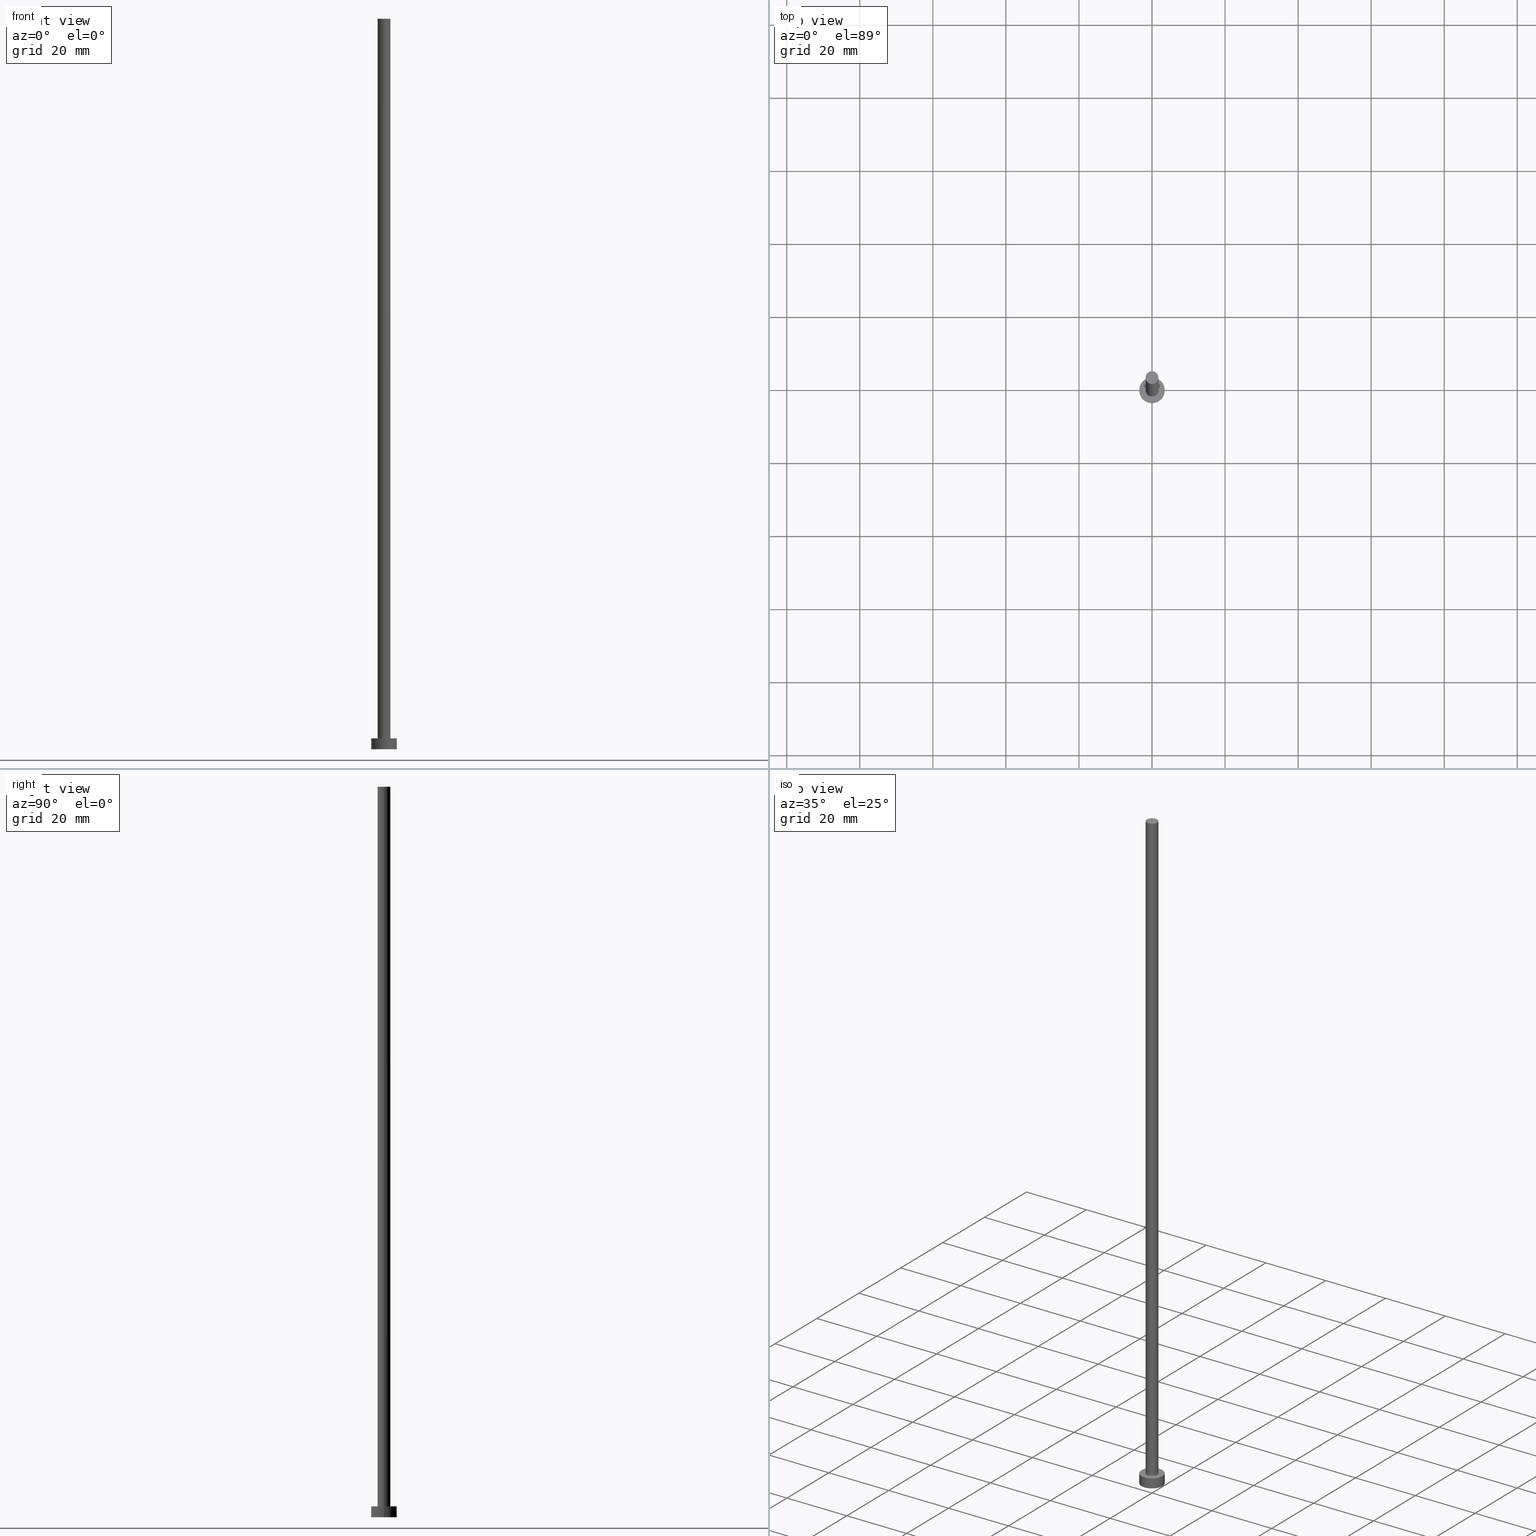
[diagram: canonical four-view strip — front | top / right | iso, engineering-drawing reading convention]
A machine part, canonical four-view strip (front | top / right | iso — engineering-drawing reading convention). The complete STEP part file that produces these views, byte-faithful:
ISO-10303-21;
HEADER;
FILE_DESCRIPTION (( 'STEP AP203' ),
    '1' );
FILE_NAME ('5a98.STEP',
    '2023-02-13T16:23:33',
    ( '' ),
    ( '' ),
    'SwSTEP 2.0',
    'SolidWorks 2019',
    '' );
FILE_SCHEMA (( 'CONFIG_CONTROL_DESIGN' ));
ENDSEC;

DATA;
#1 = COORDINATED_UNIVERSAL_TIME_OFFSET ( 1, 0, .AHEAD. ) ;
#2 = CIRCLE ( 'NONE', #93, 3.500000000000000000 ) ;
#3 = DATE_TIME_ROLE ( 'classification_date' ) ;
#4 = CIRCLE ( 'NONE', #217, 3.500000000000000000 ) ;
#5 = PERSON_AND_ORGANIZATION ( #246, #223 ) ;
#6 = CARTESIAN_POINT ( 'NONE',  ( 0.000000000000000000, 0.000000000000000000, 200.0000000000000000 ) ) ;
#7 = ORIENTED_EDGE ( 'NONE', *, *, #108, .T. ) ;
#8 = AXIS2_PLACEMENT_3D ( 'NONE', #254, #233, #59 ) ;
#9 = AXIS2_PLACEMENT_3D ( 'NONE', #178, #195, #61 ) ;
#10 = DIRECTION ( 'NONE',  ( 0.000000000000000000, 0.000000000000000000, 1.000000000000000000 ) ) ;
#11 = PRODUCT_DEFINITION ( 'NEZN�M�', '', #152, #23 ) ;
#12 = EDGE_LOOP ( 'NONE', ( #92, #112, #32, #95 ) ) ;
#13 = CARTESIAN_POINT ( 'NONE',  ( 1.750000000000000000, 2.143131898507868297E-16, 3.000000000000000000 ) ) ;
#14 = LOCAL_TIME ( 17, 23, 33.00000000000000000, #219 ) ;
#15 =( LENGTH_UNIT ( ) NAMED_UNIT ( * ) SI_UNIT ( .MILLI., .METRE. ) );
#16 = DIRECTION ( 'NONE',  ( 1.000000000000000000, 0.000000000000000000, 0.000000000000000000 ) ) ;
#17 = EDGE_CURVE ( 'NONE', #150, #72, #157, .T. ) ;
#18 = LINE ( 'NONE', #136, #250 ) ;
#19 = CC_DESIGN_PERSON_AND_ORGANIZATION_ASSIGNMENT ( #25, #142, ( #26 ) ) ;
#20 = DATE_TIME_ROLE ( 'creation_date' ) ;
#21 = APPROVAL_STATUS ( 'not_yet_approved' ) ;
#22 = CALENDAR_DATE ( 2023, 13, 2 ) ;
#23 = DESIGN_CONTEXT ( 'detailed design', #154, 'design' ) ;
#24 = DATE_AND_TIME ( #43, #14 ) ;
#25 = PERSON_AND_ORGANIZATION ( #246, #223 ) ;
#26 = PRODUCT ( '5a98', '5a98', '', ( #123 ) ) ;
#27 = ADVANCED_FACE ( 'NONE', ( #226 ), #55, .T. ) ;
#28 = ADVANCED_FACE ( 'NONE', ( #225 ), #186, .T. ) ;
#29 = ORIENTED_EDGE ( 'NONE', *, *, #38, .T. ) ;
#30 = AXIS2_PLACEMENT_3D ( 'NONE', #117, #80, #118 ) ;
#31 = EDGE_LOOP ( 'NONE', ( #228, #7, #76, #244 ) ) ;
#32 = ORIENTED_EDGE ( 'NONE', *, *, #78, .T. ) ;
#33 = DIRECTION ( 'NONE',  ( -0.000000000000000000, -0.000000000000000000, -1.000000000000000000 ) ) ;
#34 = APPROVAL_PERSON_ORGANIZATION ( #199, #168, #183 ) ;
#35 = AXIS2_PLACEMENT_3D ( 'NONE', #132, #10, #130 ) ;
#36 = CARTESIAN_POINT ( 'NONE',  ( 0.000000000000000000, 0.000000000000000000, 0.000000000000000000 ) ) ;
#37 = FACE_OUTER_BOUND ( 'NONE', #167, .T. ) ;
#38 = EDGE_CURVE ( 'NONE', #134, #207, #89, .T. ) ;
#39 = DIRECTION ( 'NONE',  ( -0.000000000000000000, -0.000000000000000000, -1.000000000000000000 ) ) ;
#40 = DIRECTION ( 'NONE',  ( -0.000000000000000000, -0.000000000000000000, -1.000000000000000000 ) ) ;
#41 = CARTESIAN_POINT ( 'NONE',  ( -3.500000000000000000, 0.000000000000000000, 3.000000000000000000 ) ) ;
#42 = CARTESIAN_POINT ( 'NONE',  ( 1.750000000000000000, 2.143131898507868297E-16, 200.0000000000000000 ) ) ;
#43 = CALENDAR_DATE ( 2023, 13, 2 ) ;
#44 = ADVANCED_FACE ( 'NONE', ( #155 ), #230, .F. ) ;
#45 = DATE_AND_TIME ( #220, #174 ) ;
#46 = PERSON_AND_ORGANIZATION_ROLE ( 'classification_officer' ) ;
#47 = LOCAL_TIME ( 17, 23, 33.00000000000000000, #1 ) ;
#48 = PERSON_AND_ORGANIZATION ( #246, #223 ) ;
#49 = PRODUCT_DEFINITION_SHAPE ( 'NONE', 'NONE',  #11 ) ;
#50 = EDGE_LOOP ( 'NONE', ( #73, #91 ) ) ;
#51 = APPROVAL ( #166, 'NEUR�EN�' ) ;
#52 = VERTEX_POINT ( 'NONE', #81 ) ;
#53 = ORIENTED_EDGE ( 'NONE', *, *, #182, .F. ) ;
#54 = EDGE_CURVE ( 'NONE', #52, #190, #175, .T. ) ;
#55 = PLANE ( 'NONE',  #35 ) ;
#56 = VERTEX_POINT ( 'NONE', #193 ) ;
#57 = AXIS2_PLACEMENT_3D ( 'NONE', #6, #33, #94 ) ;
#58 = FACE_OUTER_BOUND ( 'NONE', #12, .T. ) ;
#59 = DIRECTION ( 'NONE',  ( -1.000000000000000000, 0.000000000000000000, 0.000000000000000000 ) ) ;
#60 = APPROVAL_PERSON_ORGANIZATION ( #48, #133, #84 ) ;
#61 = DIRECTION ( 'NONE',  ( -1.000000000000000000, 0.000000000000000000, 0.000000000000000000 ) ) ;
#62 = DIRECTION ( 'NONE',  ( 0.000000000000000000, 0.000000000000000000, 1.000000000000000000 ) ) ;
#63 = ADVANCED_FACE ( 'NONE', ( #58 ), #194, .T. ) ;
#64 = DATE_AND_TIME ( #104, #141 ) ;
#65 = APPLICATION_PROTOCOL_DEFINITION ( 'international standard', 'config_control_design', 1994, #176 ) ;
#66 = CC_DESIGN_APPROVAL ( #133, ( #11 ) ) ;
#67 = CIRCLE ( 'NONE', #161, 1.750000000000000000 ) ;
#68 = COORDINATED_UNIVERSAL_TIME_OFFSET ( 1, 0, .AHEAD. ) ;
#69 = COORDINATED_UNIVERSAL_TIME_OFFSET ( 1, 0, .AHEAD. ) ;
#70 = DIRECTION ( 'NONE',  ( 0.000000000000000000, 0.000000000000000000, 1.000000000000000000 ) ) ;
#71 = CC_DESIGN_SECURITY_CLASSIFICATION ( #147, ( #152 ) ) ;
#72 = VERTEX_POINT ( 'NONE', #42 ) ;
#73 = ORIENTED_EDGE ( 'NONE', *, *, #181, .T. ) ;
#74 = CARTESIAN_POINT ( 'NONE',  ( 0.000000000000000000, 0.000000000000000000, 200.0000000000000000 ) ) ;
#75 = PRODUCT_RELATED_PRODUCT_CATEGORY ( 'detail', '', ( #26 ) ) ;
#76 = ORIENTED_EDGE ( 'NONE', *, *, #196, .T. ) ;
#77 = DIRECTION ( 'NONE',  ( 1.000000000000000000, 0.000000000000000000, 0.000000000000000000 ) ) ;
#78 = EDGE_CURVE ( 'NONE', #150, #52, #18, .T. ) ;
#79 = DIRECTION ( 'NONE',  ( 0.000000000000000000, 0.000000000000000000, 1.000000000000000000 ) ) ;
#80 = DIRECTION ( 'NONE',  ( 0.000000000000000000, 0.000000000000000000, 1.000000000000000000 ) ) ;
#81 = CARTESIAN_POINT ( 'NONE',  ( -1.750000000000000000, 0.000000000000000000, 3.000000000000000000 ) ) ;
#82 = CARTESIAN_POINT ( 'NONE',  ( 0.000000000000000000, 0.000000000000000000, 3.000000000000000000 ) ) ;
#83 = DIRECTION ( 'NONE',  ( 1.000000000000000000, 0.000000000000000000, 0.000000000000000000 ) ) ;
#84 = APPROVAL_ROLE ( '' ) ;
#85 = CALENDAR_DATE ( 2023, 13, 2 ) ;
#86 = AXIS2_PLACEMENT_3D ( 'NONE', #74, #153, #229 ) ;
#87 = SHAPE_DEFINITION_REPRESENTATION ( #49, #251 ) ;
#88 = CC_DESIGN_APPROVAL ( #51, ( #152 ) ) ;
#89 = CIRCLE ( 'NONE', #218, 3.500000000000000000 ) ;
#90 = CC_DESIGN_DATE_AND_TIME_ASSIGNMENT ( #125, #20, ( #11 ) ) ;
#91 = ORIENTED_EDGE ( 'NONE', *, *, #148, .T. ) ;
#92 = ORIENTED_EDGE ( 'NONE', *, *, #108, .F. ) ;
#93 = AXIS2_PLACEMENT_3D ( 'NONE', #211, #162, #215 ) ;
#94 = DIRECTION ( 'NONE',  ( -1.000000000000000000, 0.000000000000000000, 0.000000000000000000 ) ) ;
#95 = ORIENTED_EDGE ( 'NONE', *, *, #54, .T. ) ;
#96 = CARTESIAN_POINT ( 'NONE',  ( 3.500000000000000000, 4.286263797015736595E-16, 3.000000000000000000 ) ) ;
#97 = AXIS2_PLACEMENT_3D ( 'NONE', #36, #116, #191 ) ;
#98 = LINE ( 'NONE', #213, #127 ) ;
#99 = FACE_OUTER_BOUND ( 'NONE', #169, .T. ) ;
#100 = DIRECTION ( 'NONE',  ( 1.000000000000000000, 0.000000000000000000, 0.000000000000000000 ) ) ;
#101 = CARTESIAN_POINT ( 'NONE',  ( -1.750000000000000000, 0.000000000000000000, 200.0000000000000000 ) ) ;
#102 = EDGE_CURVE ( 'NONE', #172, #134, #98, .T. ) ;
#103 = CC_DESIGN_PERSON_AND_ORGANIZATION_ASSIGNMENT ( #5, #46, ( #147 ) ) ;
#104 = CALENDAR_DATE ( 2023, 13, 2 ) ;
#105 = PERSON_AND_ORGANIZATION ( #246, #223 ) ;
#106 = EDGE_CURVE ( 'NONE', #72, #150, #67, .T. ) ;
#107 = APPROVAL_ROLE ( '' ) ;
#108 = EDGE_CURVE ( 'NONE', #72, #190, #249, .T. ) ;
#109 = CC_DESIGN_PERSON_AND_ORGANIZATION_ASSIGNMENT ( #242, #128, ( #152 ) ) ;
#110 = ORIENTED_EDGE ( 'NONE', *, *, #148, .F. ) ;
#111 = AXIS2_PLACEMENT_3D ( 'NONE', #235, #62, #83 ) ;
#112 = ORIENTED_EDGE ( 'NONE', *, *, #17, .F. ) ;
#113 = EDGE_LOOP ( 'NONE', ( #203, #243 ) ) ;
#114 = ORIENTED_EDGE ( 'NONE', *, *, #102, .F. ) ;
#115 = LOCAL_TIME ( 17, 23, 33.00000000000000000, #69 ) ;
#116 = DIRECTION ( 'NONE',  ( 0.000000000000000000, 0.000000000000000000, 1.000000000000000000 ) ) ;
#117 = CARTESIAN_POINT ( 'NONE',  ( 0.000000000000000000, 0.000000000000000000, 3.000000000000000000 ) ) ;
#118 = DIRECTION ( 'NONE',  ( 1.000000000000000000, 0.000000000000000000, 0.000000000000000000 ) ) ;
#119 =( GEOMETRIC_REPRESENTATION_CONTEXT ( 3 ) GLOBAL_UNCERTAINTY_ASSIGNED_CONTEXT ( ( #124 ) ) GLOBAL_UNIT_ASSIGNED_CONTEXT ( ( #15, #200, #198 ) ) REPRESENTATION_CONTEXT ( 'NONE', 'WORKASPACE' ) );
#120 = CYLINDRICAL_SURFACE ( 'NONE', #137, 3.500000000000000000 ) ;
#121 = FACE_OUTER_BOUND ( 'NONE', #50, .T. ) ;
#122 = DIRECTION ( 'NONE',  ( 1.000000000000000000, 0.000000000000000000, -0.000000000000000000 ) ) ;
#123 = MECHANICAL_CONTEXT ( 'NONE', #176, 'mechanical' ) ;
#124 = UNCERTAINTY_MEASURE_WITH_UNIT (LENGTH_MEASURE( 1.000000000000000082E-05 ), #15, 'distance_accuracy_value', 'NONE');
#125 = DATE_AND_TIME ( #22, #47 ) ;
#126 = APPROVAL_DATE_TIME ( #45, #168 ) ;
#127 = VECTOR ( 'NONE', #158, 1000.000000000000000 ) ;
#128 = PERSON_AND_ORGANIZATION_ROLE ( 'creator' ) ;
#129 = ORIENTED_EDGE ( 'NONE', *, *, #17, .T. ) ;
#130 = DIRECTION ( 'NONE',  ( 1.000000000000000000, 0.000000000000000000, -0.000000000000000000 ) ) ;
#131 = ORIENTED_EDGE ( 'NONE', *, *, #106, .T. ) ;
#132 = CARTESIAN_POINT ( 'NONE',  ( 0.000000000000000000, 0.000000000000000000, 200.0000000000000000 ) ) ;
#133 = APPROVAL ( #255, 'NEUR�EN�' ) ;
#134 = VERTEX_POINT ( 'NONE', #238 ) ;
#135 = CIRCLE ( 'NONE', #30, 1.750000000000000000 ) ;
#136 = CARTESIAN_POINT ( 'NONE',  ( -1.750000000000000000, 0.000000000000000000, 200.0000000000000000 ) ) ;
#137 = AXIS2_PLACEMENT_3D ( 'NONE', #177, #140, #138 ) ;
#138 = DIRECTION ( 'NONE',  ( -1.000000000000000000, 0.000000000000000000, 0.000000000000000000 ) ) ;
#139 = MANIFOLD_SOLID_BREP ( 'P�idat vysunut�m3', #237 ) ;
#140 = DIRECTION ( 'NONE',  ( -0.000000000000000000, -0.000000000000000000, -1.000000000000000000 ) ) ;
#141 = LOCAL_TIME ( 17, 23, 33.00000000000000000, #165 ) ;
#142 = PERSON_AND_ORGANIZATION_ROLE ( 'design_owner' ) ;
#143 = VECTOR ( 'NONE', #159, 1000.000000000000000 ) ;
#144 = PERSON_AND_ORGANIZATION_ROLE ( 'creator' ) ;
#145 = ADVANCED_FACE ( 'NONE', ( #37 ), #120, .T. ) ;
#146 = APPROVAL_DATE_TIME ( #222, #51 ) ;
#147 = SECURITY_CLASSIFICATION ( '', '', #239 ) ;
#148 = EDGE_CURVE ( 'NONE', #172, #56, #2, .T. ) ;
#149 = CC_DESIGN_PERSON_AND_ORGANIZATION_ASSIGNMENT ( #202, #184, ( #152 ) ) ;
#150 = VERTEX_POINT ( 'NONE', #101 ) ;
#151 = ORIENTED_EDGE ( 'NONE', *, *, #181, .F. ) ;
#152 = PRODUCT_DEFINITION_FORMATION_WITH_SPECIFIED_SOURCE ( 'LIBOVOLN�', '', #26, .NOT_KNOWN. ) ;
#153 = DIRECTION ( 'NONE',  ( 0.000000000000000000, 0.000000000000000000, 1.000000000000000000 ) ) ;
#154 = APPLICATION_CONTEXT ( 'configuration controlled 3d designs of mechanical parts and assemblies' ) ;
#155 = FACE_OUTER_BOUND ( 'NONE', #206, .T. ) ;
#156 = CARTESIAN_POINT ( 'NONE',  ( 0.000000000000000000, 0.000000000000000000, 0.000000000000000000 ) ) ;
#157 = CIRCLE ( 'NONE', #86, 1.750000000000000000 ) ;
#158 = DIRECTION ( 'NONE',  ( -0.000000000000000000, -0.000000000000000000, -1.000000000000000000 ) ) ;
#159 = DIRECTION ( 'NONE',  ( -0.000000000000000000, -0.000000000000000000, -1.000000000000000000 ) ) ;
#160 = CARTESIAN_POINT ( 'NONE',  ( 0.000000000000000000, 0.000000000000000000, 3.000000000000000000 ) ) ;
#161 = AXIS2_PLACEMENT_3D ( 'NONE', #197, #253, #210 ) ;
#162 = DIRECTION ( 'NONE',  ( 0.000000000000000000, 0.000000000000000000, 1.000000000000000000 ) ) ;
#163 = CARTESIAN_POINT ( 'NONE',  ( 0.000000000000000000, 0.000000000000000000, 0.000000000000000000 ) ) ;
#164 = APPROVAL_DATE_TIME ( #64, #133 ) ;
#165 = COORDINATED_UNIVERSAL_TIME_OFFSET ( 1, 0, .AHEAD. ) ;
#166 = APPROVAL_STATUS ( 'not_yet_approved' ) ;
#167 = EDGE_LOOP ( 'NONE', ( #110, #170, #29, #53 ) ) ;
#168 = APPROVAL ( #21, 'NEUR�EN�' ) ;
#169 = EDGE_LOOP ( 'NONE', ( #114, #151, #209, #188 ) ) ;
#170 = ORIENTED_EDGE ( 'NONE', *, *, #102, .T. ) ;
#171 = CARTESIAN_POINT ( 'NONE',  ( 0.000000000000000000, 0.000000000000000000, 0.000000000000000000 ) ) ;
#172 = VERTEX_POINT ( 'NONE', #96 ) ;
#173 = FACE_BOUND ( 'NONE', #113, .T. ) ;
#174 = LOCAL_TIME ( 17, 23, 33.00000000000000000, #68 ) ;
#175 = CIRCLE ( 'NONE', #111, 1.750000000000000000 ) ;
#176 = APPLICATION_CONTEXT ( 'configuration controlled 3d designs of mechanical parts and assemblies' ) ;
#177 = CARTESIAN_POINT ( 'NONE',  ( 0.000000000000000000, 0.000000000000000000, 3.000000000000000000 ) ) ;
#178 = CARTESIAN_POINT ( 'NONE',  ( 0.000000000000000000, 0.000000000000000000, 200.0000000000000000 ) ) ;
#179 = DIRECTION ( 'NONE',  ( 0.000000000000000000, 0.000000000000000000, 1.000000000000000000 ) ) ;
#180 = CC_DESIGN_APPROVAL ( #168, ( #147 ) ) ;
#181 = EDGE_CURVE ( 'NONE', #56, #172, #208, .T. ) ;
#182 = EDGE_CURVE ( 'NONE', #56, #207, #252, .T. ) ;
#183 = APPROVAL_ROLE ( '' ) ;
#184 = PERSON_AND_ORGANIZATION_ROLE ( 'design_supplier' ) ;
#185 = ADVANCED_FACE ( 'NONE', ( #173, #121 ), #232, .T. ) ;
#186 = CYLINDRICAL_SURFACE ( 'NONE', #57, 1.750000000000000000 ) ;
#187 = ORIENTED_EDGE ( 'NONE', *, *, #221, .F. ) ;
#188 = ORIENTED_EDGE ( 'NONE', *, *, #221, .T. ) ;
#189 = APPROVAL_PERSON_ORGANIZATION ( #105, #51, #107 ) ;
#190 = VERTEX_POINT ( 'NONE', #13 ) ;
#191 = DIRECTION ( 'NONE',  ( 1.000000000000000000, 0.000000000000000000, -0.000000000000000000 ) ) ;
#192 = CARTESIAN_POINT ( 'NONE',  ( 1.750000000000000000, 2.143131898507868297E-16, 200.0000000000000000 ) ) ;
#193 = CARTESIAN_POINT ( 'NONE',  ( -3.500000000000000000, 0.000000000000000000, 3.000000000000000000 ) ) ;
#194 = CYLINDRICAL_SURFACE ( 'NONE', #9, 1.750000000000000000 ) ;
#195 = DIRECTION ( 'NONE',  ( -0.000000000000000000, -0.000000000000000000, -1.000000000000000000 ) ) ;
#196 = EDGE_CURVE ( 'NONE', #190, #52, #135, .T. ) ;
#197 = CARTESIAN_POINT ( 'NONE',  ( 0.000000000000000000, 0.000000000000000000, 200.0000000000000000 ) ) ;
#198 =( NAMED_UNIT ( * ) SI_UNIT ( $, .STERADIAN. ) SOLID_ANGLE_UNIT ( ) );
#199 = PERSON_AND_ORGANIZATION ( #246, #223 ) ;
#200 =( NAMED_UNIT ( * ) PLANE_ANGLE_UNIT ( ) SI_UNIT ( $, .RADIAN. ) );
#201 = AXIS2_PLACEMENT_3D ( 'NONE', #163, #70, #224 ) ;
#202 = PERSON_AND_ORGANIZATION ( #246, #223 ) ;
#203 = ORIENTED_EDGE ( 'NONE', *, *, #54, .F. ) ;
#204 = AXIS2_PLACEMENT_3D ( 'NONE', #82, #248, #16 ) ;
#205 = ORIENTED_EDGE ( 'NONE', *, *, #38, .F. ) ;
#206 = EDGE_LOOP ( 'NONE', ( #187, #205 ) ) ;
#207 = VERTEX_POINT ( 'NONE', #212 ) ;
#208 = CIRCLE ( 'NONE', #204, 3.500000000000000000 ) ;
#209 = ORIENTED_EDGE ( 'NONE', *, *, #182, .T. ) ;
#210 = DIRECTION ( 'NONE',  ( 1.000000000000000000, 0.000000000000000000, 0.000000000000000000 ) ) ;
#211 = CARTESIAN_POINT ( 'NONE',  ( 0.000000000000000000, 0.000000000000000000, 3.000000000000000000 ) ) ;
#212 = CARTESIAN_POINT ( 'NONE',  ( -3.500000000000000000, 0.000000000000000000, 0.000000000000000000 ) ) ;
#213 = CARTESIAN_POINT ( 'NONE',  ( 3.500000000000000000, 4.286263797015736595E-16, 3.000000000000000000 ) ) ;
#214 = CC_DESIGN_DATE_AND_TIME_ASSIGNMENT ( #24, #3, ( #147 ) ) ;
#215 = DIRECTION ( 'NONE',  ( 1.000000000000000000, 0.000000000000000000, 0.000000000000000000 ) ) ;
#216 = APPLICATION_PROTOCOL_DEFINITION ( 'international standard', 'config_control_design', 1994, #154 ) ;
#217 = AXIS2_PLACEMENT_3D ( 'NONE', #156, #179, #100 ) ;
#218 = AXIS2_PLACEMENT_3D ( 'NONE', #171, #247, #77 ) ;
#219 = COORDINATED_UNIVERSAL_TIME_OFFSET ( 1, 0, .AHEAD. ) ;
#220 = CALENDAR_DATE ( 2023, 13, 2 ) ;
#221 = EDGE_CURVE ( 'NONE', #207, #134, #4, .T. ) ;
#222 = DATE_AND_TIME ( #85, #115 ) ;
#223 = ORGANIZATION ( 'NEUR�EN�', 'NEUR�EN�', '' ) ;
#224 = DIRECTION ( 'NONE',  ( 1.000000000000000000, 0.000000000000000000, 0.000000000000000000 ) ) ;
#225 = FACE_OUTER_BOUND ( 'NONE', #31, .T. ) ;
#226 = FACE_OUTER_BOUND ( 'NONE', #245, .T. ) ;
#227 = AXIS2_PLACEMENT_3D ( 'NONE', #160, #79, #122 ) ;
#228 = ORIENTED_EDGE ( 'NONE', *, *, #106, .F. ) ;
#229 = DIRECTION ( 'NONE',  ( 1.000000000000000000, 0.000000000000000000, 0.000000000000000000 ) ) ;
#230 = PLANE ( 'NONE',  #97 ) ;
#231 = CC_DESIGN_PERSON_AND_ORGANIZATION_ASSIGNMENT ( #240, #144, ( #11 ) ) ;
#232 = PLANE ( 'NONE',  #227 ) ;
#233 = DIRECTION ( 'NONE',  ( -0.000000000000000000, -0.000000000000000000, -1.000000000000000000 ) ) ;
#234 = CYLINDRICAL_SURFACE ( 'NONE', #8, 3.500000000000000000 ) ;
#235 = CARTESIAN_POINT ( 'NONE',  ( 0.000000000000000000, 0.000000000000000000, 3.000000000000000000 ) ) ;
#236 = VECTOR ( 'NONE', #39, 1000.000000000000000 ) ;
#237 = CLOSED_SHELL ( 'NONE', ( #28, #145, #241, #185, #44, #63, #27 ) ) ;
#238 = CARTESIAN_POINT ( 'NONE',  ( 3.500000000000000000, 4.286263797015736595E-16, 0.000000000000000000 ) ) ;
#239 = SECURITY_CLASSIFICATION_LEVEL ( 'unclassified' ) ;
#240 = PERSON_AND_ORGANIZATION ( #246, #223 ) ;
#241 = ADVANCED_FACE ( 'NONE', ( #99 ), #234, .T. ) ;
#242 = PERSON_AND_ORGANIZATION ( #246, #223 ) ;
#243 = ORIENTED_EDGE ( 'NONE', *, *, #196, .F. ) ;
#244 = ORIENTED_EDGE ( 'NONE', *, *, #78, .F. ) ;
#245 = EDGE_LOOP ( 'NONE', ( #129, #131 ) ) ;
#246 = PERSON ( 'NEUR�EN�', 'NEUR�EN�', 'NEUR�EN�', ('NEUR�EN�'), ('NEUR�EN�'), ('NEUR�EN�') ) ;
#247 = DIRECTION ( 'NONE',  ( 0.000000000000000000, 0.000000000000000000, 1.000000000000000000 ) ) ;
#248 = DIRECTION ( 'NONE',  ( 0.000000000000000000, 0.000000000000000000, 1.000000000000000000 ) ) ;
#249 = LINE ( 'NONE', #192, #143 ) ;
#250 = VECTOR ( 'NONE', #40, 1000.000000000000000 ) ;
#251 = ADVANCED_BREP_SHAPE_REPRESENTATION ( '5a98', ( #139, #201 ), #119 ) ;
#252 = LINE ( 'NONE', #41, #236 ) ;
#253 = DIRECTION ( 'NONE',  ( 0.000000000000000000, 0.000000000000000000, 1.000000000000000000 ) ) ;
#254 = CARTESIAN_POINT ( 'NONE',  ( 0.000000000000000000, 0.000000000000000000, 3.000000000000000000 ) ) ;
#255 = APPROVAL_STATUS ( 'not_yet_approved' ) ;
ENDSEC;
END-ISO-10303-21;
